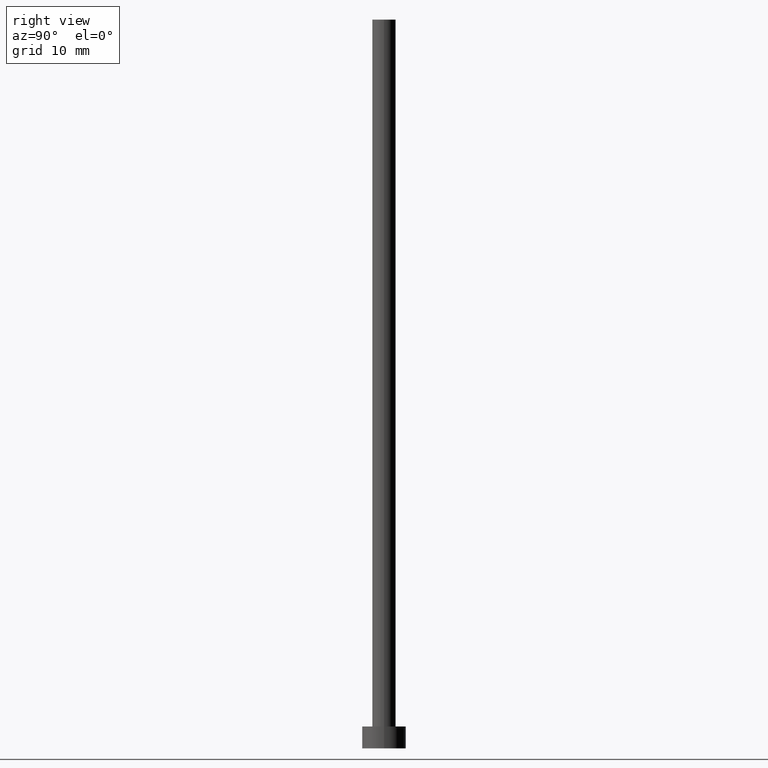
[diagram: clean part render]
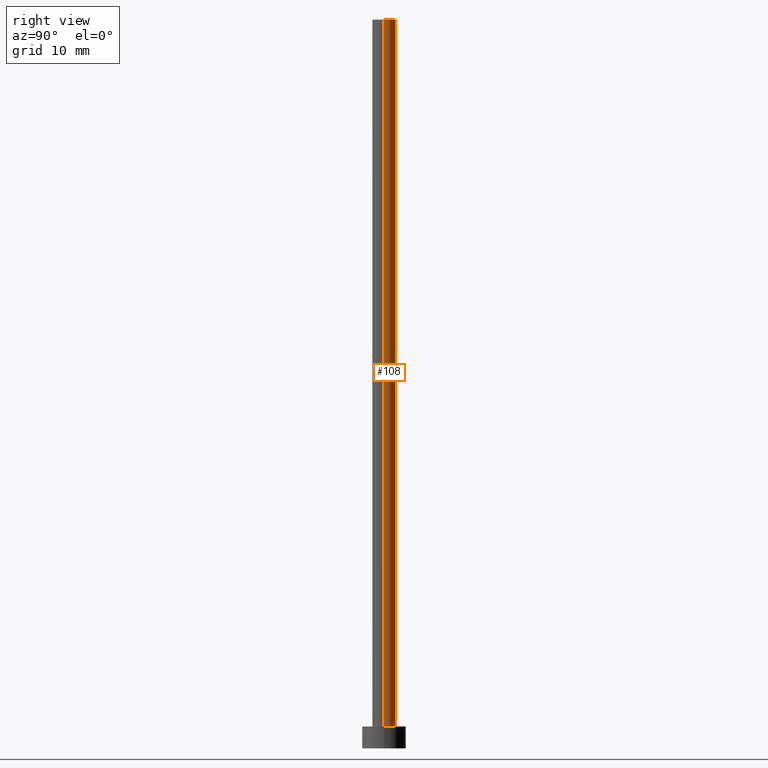
[diagram: same view with one face highlighted and labeled with its STEP entity id]
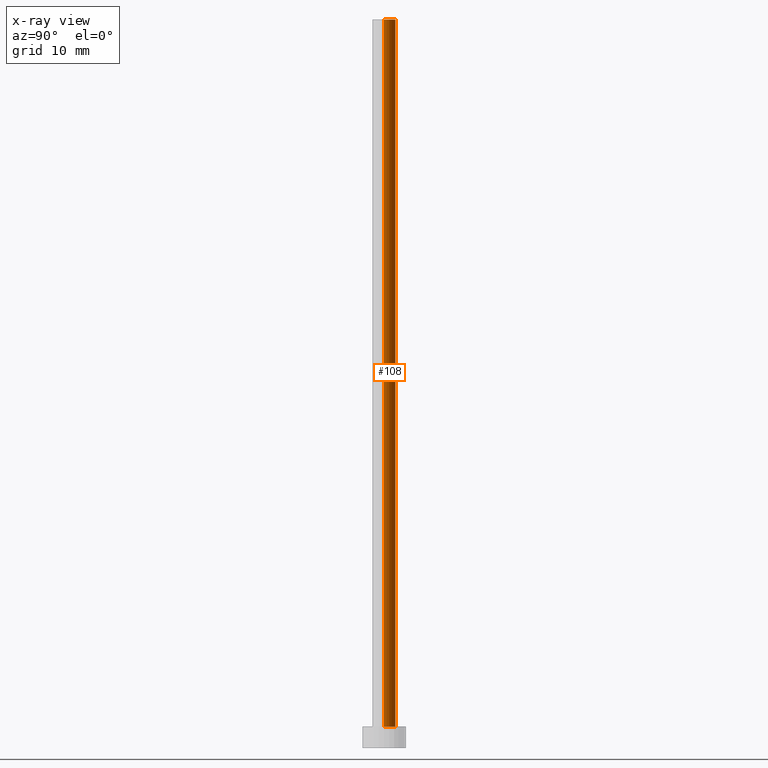
[diagram: x-ray of the same camera — body ghosted, the highlighted face saturated]
A machine part, right view. The second image highlights one B-rep face of the part: STEP entity #108.
The next image is the same camera in x-ray: the body ghosted, the highlighted face saturated — about 0% of this face is hidden behind the body in this view.
In plain terms, the highlighted cylindrical surface (edge-blend (fillet) strip) has radius 1.6 mm, axis along (-0, -0, -1).
Its self-contained STEP definition (entity closure, byte-faithful):
#4 = EDGE_CURVE ( 'NONE', #70, #14, #220, .T. ) ;
#14 = VERTEX_POINT ( 'NONE', #197 ) ;
#20 = CARTESIAN_POINT ( 'NONE',  ( 1.600000000000000089, 1.959434878635764737E-16, 3.000000000000000000 ) ) ;
#31 = ORIENTED_EDGE ( 'NONE', *, *, #248, .T. ) ;
#38 = CARTESIAN_POINT ( 'NONE',  ( -1.600000000000000089, 0.000000000000000000, 100.0000000000000000 ) ) ;
#41 = VECTOR ( 'NONE', #48, 1000.000000000000000 ) ;
#48 = DIRECTION ( 'NONE',  ( -0.000000000000000000, -0.000000000000000000, -1.000000000000000000 ) ) ;
#54 = VERTEX_POINT ( 'NONE', #20 ) ;
#59 = AXIS2_PLACEMENT_3D ( 'NONE', #184, #93, #138 ) ;
#68 = CIRCLE ( 'NONE', #59, 1.600000000000000089 ) ;
#69 = ORIENTED_EDGE ( 'NONE', *, *, #4, .F. ) ;
#70 = VERTEX_POINT ( 'NONE', #38 ) ;
#75 = DIRECTION ( 'NONE',  ( -0.000000000000000000, -0.000000000000000000, -1.000000000000000000 ) ) ;
#76 = DIRECTION ( 'NONE',  ( -1.000000000000000000, 0.000000000000000000, 0.000000000000000000 ) ) ;
#87 = LINE ( 'NONE', #161, #142 ) ;
#93 = DIRECTION ( 'NONE',  ( 0.000000000000000000, 0.000000000000000000, 1.000000000000000000 ) ) ;
#108 = ADVANCED_FACE ( 'NONE', ( #186 ), #122, .T. ) ;
#118 = ORIENTED_EDGE ( 'NONE', *, *, #199, .T. ) ;
#122 = CYLINDRICAL_SURFACE ( 'NONE', #123, 1.600000000000000089 ) ;
#123 = AXIS2_PLACEMENT_3D ( 'NONE', #187, #233, #76 ) ;
#124 = EDGE_CURVE ( 'NONE', #202, #70, #68, .T. ) ;
#127 = CARTESIAN_POINT ( 'NONE',  ( 0.000000000000000000, 0.000000000000000000, 3.000000000000000000 ) ) ;
#138 = DIRECTION ( 'NONE',  ( 1.000000000000000000, 0.000000000000000000, 0.000000000000000000 ) ) ;
#142 = VECTOR ( 'NONE', #75, 1000.000000000000000 ) ;
#145 = CARTESIAN_POINT ( 'NONE',  ( 1.600000000000000089, 1.959434878635764737E-16, 100.0000000000000000 ) ) ;
#156 = ORIENTED_EDGE ( 'NONE', *, *, #124, .F. ) ;
#161 = CARTESIAN_POINT ( 'NONE',  ( 1.600000000000000089, 1.959434878635764737E-16, 100.0000000000000000 ) ) ;
#166 = AXIS2_PLACEMENT_3D ( 'NONE', #127, #252, #235 ) ;
#184 = CARTESIAN_POINT ( 'NONE',  ( 0.000000000000000000, 0.000000000000000000, 100.0000000000000000 ) ) ;
#186 = FACE_OUTER_BOUND ( 'NONE', #223, .T. ) ;
#187 = CARTESIAN_POINT ( 'NONE',  ( 0.000000000000000000, 0.000000000000000000, 100.0000000000000000 ) ) ;
#197 = CARTESIAN_POINT ( 'NONE',  ( -1.600000000000000089, 0.000000000000000000, 3.000000000000000000 ) ) ;
#199 = EDGE_CURVE ( 'NONE', #202, #54, #87, .T. ) ;
#200 = CARTESIAN_POINT ( 'NONE',  ( -1.600000000000000089, 0.000000000000000000, 100.0000000000000000 ) ) ;
#202 = VERTEX_POINT ( 'NONE', #145 ) ;
#220 = LINE ( 'NONE', #200, #41 ) ;
#223 = EDGE_LOOP ( 'NONE', ( #156, #118, #31, #69 ) ) ;
#233 = DIRECTION ( 'NONE',  ( -0.000000000000000000, -0.000000000000000000, -1.000000000000000000 ) ) ;
#235 = DIRECTION ( 'NONE',  ( 1.000000000000000000, 0.000000000000000000, 0.000000000000000000 ) ) ;
#244 = CIRCLE ( 'NONE', #166, 1.600000000000000089 ) ;
#248 = EDGE_CURVE ( 'NONE', #54, #14, #244, .T. ) ;
#252 = DIRECTION ( 'NONE',  ( 0.000000000000000000, 0.000000000000000000, 1.000000000000000000 ) ) ;